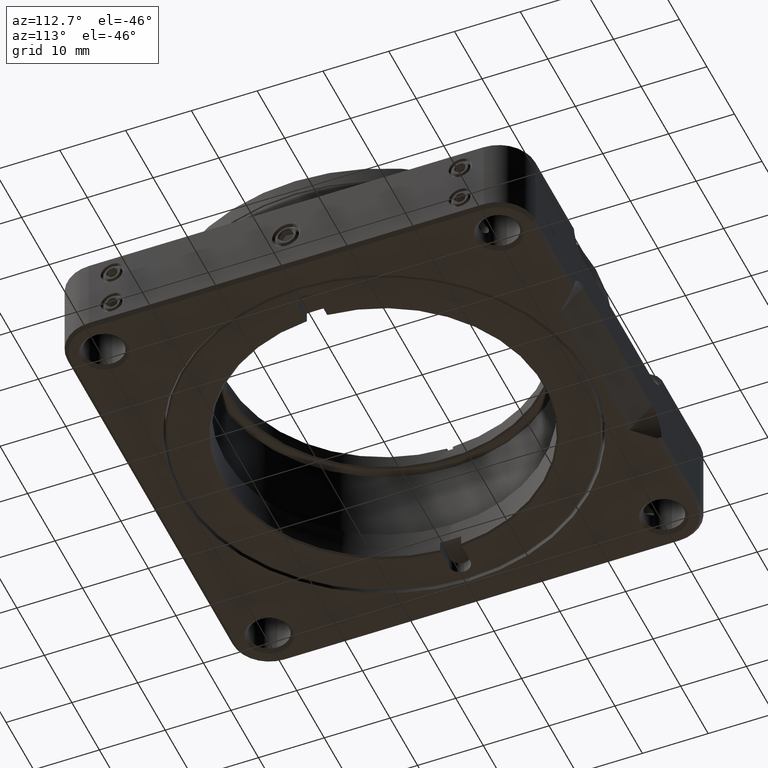
[diagram: clean part render]
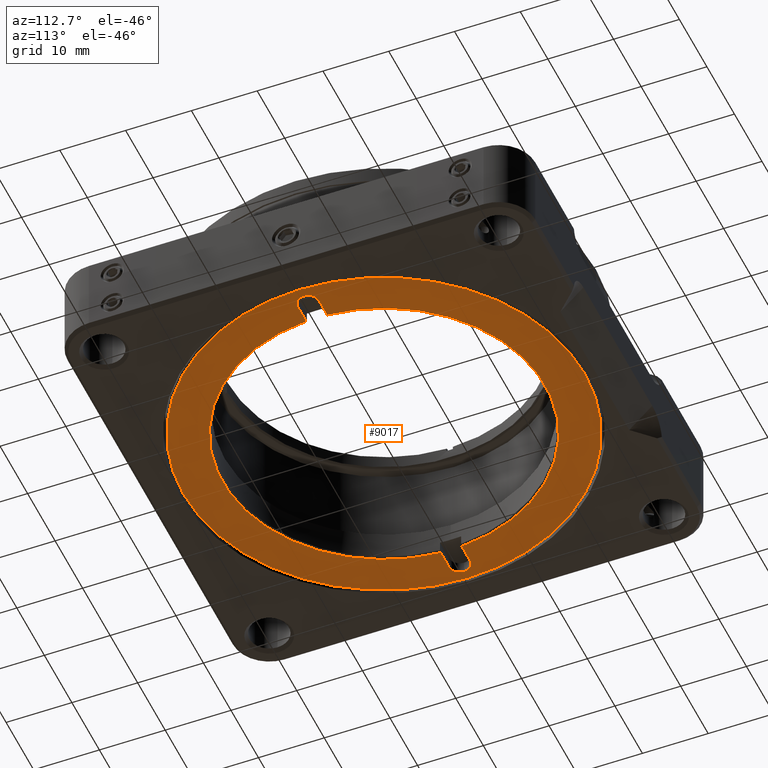
[diagram: same view with one face highlighted and labeled with its STEP entity id]
A machine part, auxiliary view. The second image highlights one B-rep face of the part: STEP entity #9017.
In plain terms, the highlighted planar face has unit normal (0, 0, 1).
Its self-contained STEP definition (entity closure, byte-faithful):
#18 = CARTESIAN_POINT ( 'NONE',  ( -29.10000000000024301, 7.131204705827057880E-15, -6.150000000000001243 ) ) ;
#43 = FACE_BOUND ( 'NONE', #805, .T. ) ;
#501 = AXIS2_PLACEMENT_3D ( 'NONE', #2279, #1147, #9896 ) ;
#589 = CARTESIAN_POINT ( 'NONE',  ( 24.44769927825540634, 1.600000000000003864, -6.150000000000001243 ) ) ;
#624 = ORIENTED_EDGE ( 'NONE', *, *, #6365, .T. ) ;
#746 = CARTESIAN_POINT ( 'NONE',  ( -27.50000000000024158, 1.600000000000017852, -6.150000000000001243 ) ) ;
#758 = AXIS2_PLACEMENT_3D ( 'NONE', #12467, #5983, #13623 ) ;
#805 = EDGE_LOOP ( 'NONE', ( #10767, #13509, #11693, #4873, #3319, #624, #14031, #1234, #6059 ) ) ;
#831 = DIRECTION ( 'NONE',  ( 0.000000000000000000, 0.000000000000000000, 1.000000000000000000 ) ) ;
#912 = FACE_OUTER_BOUND ( 'NONE', #8827, .T. ) ;
#1023 = VECTOR ( 'NONE', #4131, 1000.000000000000000 ) ;
#1147 = DIRECTION ( 'NONE',  ( -0.000000000000000000, -0.000000000000000000, -1.000000000000000000 ) ) ;
#1174 = AXIS2_PLACEMENT_3D ( 'NONE', #6694, #6544, #9846 ) ;
#1234 = ORIENTED_EDGE ( 'NONE', *, *, #9236, .F. ) ;
#1667 = AXIS2_PLACEMENT_3D ( 'NONE', #3881, #11524, #4797 ) ;
#1985 = VECTOR ( 'NONE', #9579, 1000.000000000000000 ) ;
#2214 = CARTESIAN_POINT ( 'NONE',  ( -27.50000000000012079, -1.600000000000005418, -6.150000000000001243 ) ) ;
#2279 = CARTESIAN_POINT ( 'NONE',  ( -1.379547243124282587E-16, -2.106718220792233255E-15, -6.150000000000001243 ) ) ;
#2317 = LINE ( 'NONE', #5196, #1985 ) ;
#2775 = CARTESIAN_POINT ( 'NONE',  ( 27.50000000000012079, 1.600000000000004086, -6.150000000000001243 ) ) ;
#2854 = LINE ( 'NONE', #9581, #1023 ) ;
#3093 = CARTESIAN_POINT ( 'NONE',  ( -27.50000000000012079, -1.600000000000005418, -6.150000000000001243 ) ) ;
#3256 = DIRECTION ( 'NONE',  ( 1.000000000000000000, -3.226585665316836051E-16, 0.000000000000000000 ) ) ;
#3319 = ORIENTED_EDGE ( 'NONE', *, *, #9131, .F. ) ;
#3453 = CARTESIAN_POINT ( 'NONE',  ( -24.44769927825540634, -1.600000000000004974, -6.150000000000001243 ) ) ;
#3594 = EDGE_CURVE ( 'NONE', #9346, #4752, #12161, .T. ) ;
#3701 = ORIENTED_EDGE ( 'NONE', *, *, #12284, .T. ) ;
#3881 = CARTESIAN_POINT ( 'NONE',  ( -27.50000000000024158, 7.109000245334554434E-15, -6.150000000000001243 ) ) ;
#4008 = CIRCLE ( 'NONE', #13645, 24.50000000000019185 ) ;
#4116 = AXIS2_PLACEMENT_3D ( 'NONE', #10746, #10787, #6399 ) ;
#4131 = DIRECTION ( 'NONE',  ( 1.000000000000000000, -3.226585665316836051E-16, 0.000000000000000000 ) ) ;
#4240 = CARTESIAN_POINT ( 'NONE',  ( -1.379547243124282587E-16, -2.106718220792233255E-15, -6.150000000000001243 ) ) ;
#4314 = AXIS2_PLACEMENT_3D ( 'NONE', #6905, #9147, #10242 ) ;
#4378 = CIRCLE ( 'NONE', #758, 1.600000000000011191 ) ;
#4564 = EDGE_CURVE ( 'NONE', #6221, #12073, #4378, .T. ) ;
#4597 = CARTESIAN_POINT ( 'NONE',  ( 30.50000000000023803, -2.529990748930574186E-15, -6.150000000000001243 ) ) ;
#4637 = EDGE_CURVE ( 'NONE', #12073, #7839, #2317, .T. ) ;
#4752 = VERTEX_POINT ( 'NONE', #6363 ) ;
#4797 = DIRECTION ( 'NONE',  ( -1.000000000000000000, 1.387778780781475566E-17, 0.000000000000000000 ) ) ;
#4873 = ORIENTED_EDGE ( 'NONE', *, *, #4564, .F. ) ;
#4994 = EDGE_CURVE ( 'NONE', #5715, #8271, #11342, .T. ) ;
#5196 = CARTESIAN_POINT ( 'NONE',  ( -27.50000000000012079, -1.600000000000005418, -6.150000000000001243 ) ) ;
#5484 = EDGE_CURVE ( 'NONE', #10868, #5516, #2854, .T. ) ;
#5516 = VERTEX_POINT ( 'NONE', #10804 ) ;
#5602 = CARTESIAN_POINT ( 'NONE',  ( 27.50000000000024158, -1.600000000000019185, -6.150000000000001243 ) ) ;
#5715 = VERTEX_POINT ( 'NONE', #3093 ) ;
#5905 = CARTESIAN_POINT ( 'NONE',  ( 24.44769927825550226, -1.600000000000024514, -6.150000000000001243 ) ) ;
#5983 = DIRECTION ( 'NONE',  ( 0.000000000000000000, 0.000000000000000000, -1.000000000000000000 ) ) ;
#6059 = ORIENTED_EDGE ( 'NONE', *, *, #4994, .F. ) ;
#6221 = VERTEX_POINT ( 'NONE', #2775 ) ;
#6227 = CIRCLE ( 'NONE', #4116, 24.50000000000019185 ) ;
#6363 = CARTESIAN_POINT ( 'NONE',  ( -30.50000000000000355, 2.068769853210867328E-15, -6.150000000000001243 ) ) ;
#6365 = EDGE_CURVE ( 'NONE', #12804, #5516, #6227, .T. ) ;
#6378 = PLANE ( 'NONE',  #9688 ) ;
#6399 = DIRECTION ( 'NONE',  ( 1.000000000000000000, -1.387778780781434428E-17, 0.000000000000000000 ) ) ;
#6544 = DIRECTION ( 'NONE',  ( -0.000000000000000000, -0.000000000000000000, -1.000000000000000000 ) ) ;
#6585 = DIRECTION ( 'NONE',  ( -1.000000000000000000, 3.226585665316836051E-16, 0.000000000000000000 ) ) ;
#6694 = CARTESIAN_POINT ( 'NONE',  ( -1.379547243124282587E-16, -2.106718220792233255E-15, -6.150000000000001243 ) ) ;
#6905 = CARTESIAN_POINT ( 'NONE',  ( -27.50000000000024158, 7.109000245334554434E-15, -6.150000000000001243 ) ) ;
#7839 = VERTEX_POINT ( 'NONE', #5905 ) ;
#8057 = VECTOR ( 'NONE', #3256, 1000.000000000000000 ) ;
#8271 = VERTEX_POINT ( 'NONE', #18 ) ;
#8590 = CIRCLE ( 'NONE', #501, 30.50000000000023803 ) ;
#8801 = ORIENTED_EDGE ( 'NONE', *, *, #3594, .T. ) ;
#8827 = EDGE_LOOP ( 'NONE', ( #8801, #3701 ) ) ;
#8956 = EDGE_CURVE ( 'NONE', #12012, #5715, #9923, .T. ) ;
#9017 = ADVANCED_FACE ( 'NONE', ( #912, #43 ), #6378, .F. ) ;
#9131 = EDGE_CURVE ( 'NONE', #12804, #6221, #11974, .T. ) ;
#9147 = DIRECTION ( 'NONE',  ( 0.000000000000000000, 0.000000000000000000, -1.000000000000000000 ) ) ;
#9236 = EDGE_CURVE ( 'NONE', #8271, #10868, #10077, .T. ) ;
#9346 = VERTEX_POINT ( 'NONE', #4597 ) ;
#9579 = DIRECTION ( 'NONE',  ( -1.000000000000000000, 3.226585665316836051E-16, 0.000000000000000000 ) ) ;
#9581 = CARTESIAN_POINT ( 'NONE',  ( -27.50000000000024158, 1.600000000000017852, -6.150000000000001243 ) ) ;
#9688 = AXIS2_PLACEMENT_3D ( 'NONE', #4240, #14098, #10723 ) ;
#9846 = DIRECTION ( 'NONE',  ( 1.000000000000000000, -1.387778780781434890E-17, 0.000000000000000000 ) ) ;
#9896 = DIRECTION ( 'NONE',  ( 1.000000000000000000, -1.387778780781434890E-17, 0.000000000000000000 ) ) ;
#9923 = LINE ( 'NONE', #2214, #13918 ) ;
#10077 = CIRCLE ( 'NONE', #4314, 1.600000000000011191 ) ;
#10242 = DIRECTION ( 'NONE',  ( -1.000000000000000000, 1.387778780781475566E-17, 0.000000000000000000 ) ) ;
#10723 = DIRECTION ( 'NONE',  ( 1.000000000000000000, -1.387778780781434890E-17, 0.000000000000000000 ) ) ;
#10746 = CARTESIAN_POINT ( 'NONE',  ( -1.379547243124282587E-16, -2.106718220792233255E-15, -6.150000000000001243 ) ) ;
#10767 = ORIENTED_EDGE ( 'NONE', *, *, #8956, .F. ) ;
#10787 = DIRECTION ( 'NONE',  ( 0.000000000000000000, 0.000000000000000000, 1.000000000000000000 ) ) ;
#10804 = CARTESIAN_POINT ( 'NONE',  ( -24.44769927825550226, 1.600000000000023626, -6.150000000000001243 ) ) ;
#10813 = CARTESIAN_POINT ( 'NONE',  ( -27.50000000000024158, 1.600000000000017852, -6.150000000000001243 ) ) ;
#10868 = VERTEX_POINT ( 'NONE', #746 ) ;
#11329 = EDGE_CURVE ( 'NONE', #12012, #7839, #4008, .T. ) ;
#11342 = CIRCLE ( 'NONE', #1667, 1.600000000000011191 ) ;
#11524 = DIRECTION ( 'NONE',  ( 0.000000000000000000, 0.000000000000000000, -1.000000000000000000 ) ) ;
#11693 = ORIENTED_EDGE ( 'NONE', *, *, #4637, .F. ) ;
#11701 = DIRECTION ( 'NONE',  ( 1.000000000000000000, -1.387778780781434428E-17, 0.000000000000000000 ) ) ;
#11974 = LINE ( 'NONE', #10813, #8057 ) ;
#12012 = VERTEX_POINT ( 'NONE', #3453 ) ;
#12073 = VERTEX_POINT ( 'NONE', #5602 ) ;
#12161 = CIRCLE ( 'NONE', #1174, 30.50000000000023803 ) ;
#12284 = EDGE_CURVE ( 'NONE', #4752, #9346, #8590, .T. ) ;
#12467 = CARTESIAN_POINT ( 'NONE',  ( 27.50000000000024158, -8.340880712583883751E-15, -6.150000000000001243 ) ) ;
#12804 = VERTEX_POINT ( 'NONE', #589 ) ;
#12902 = CARTESIAN_POINT ( 'NONE',  ( -1.379547243124282587E-16, -2.106718220792233255E-15, -6.150000000000001243 ) ) ;
#13509 = ORIENTED_EDGE ( 'NONE', *, *, #11329, .T. ) ;
#13623 = DIRECTION ( 'NONE',  ( -1.000000000000000000, 1.387778780781475566E-17, 0.000000000000000000 ) ) ;
#13645 = AXIS2_PLACEMENT_3D ( 'NONE', #12902, #831, #11701 ) ;
#13918 = VECTOR ( 'NONE', #6585, 1000.000000000000000 ) ;
#14031 = ORIENTED_EDGE ( 'NONE', *, *, #5484, .F. ) ;
#14098 = DIRECTION ( 'NONE',  ( 0.000000000000000000, 0.000000000000000000, 1.000000000000000000 ) ) ;